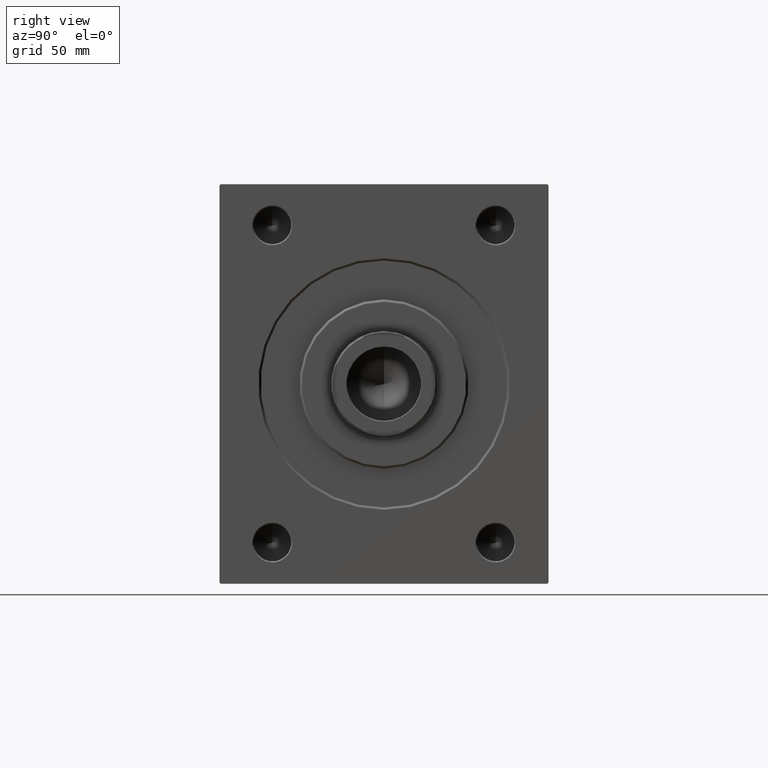
[diagram: clean part render]
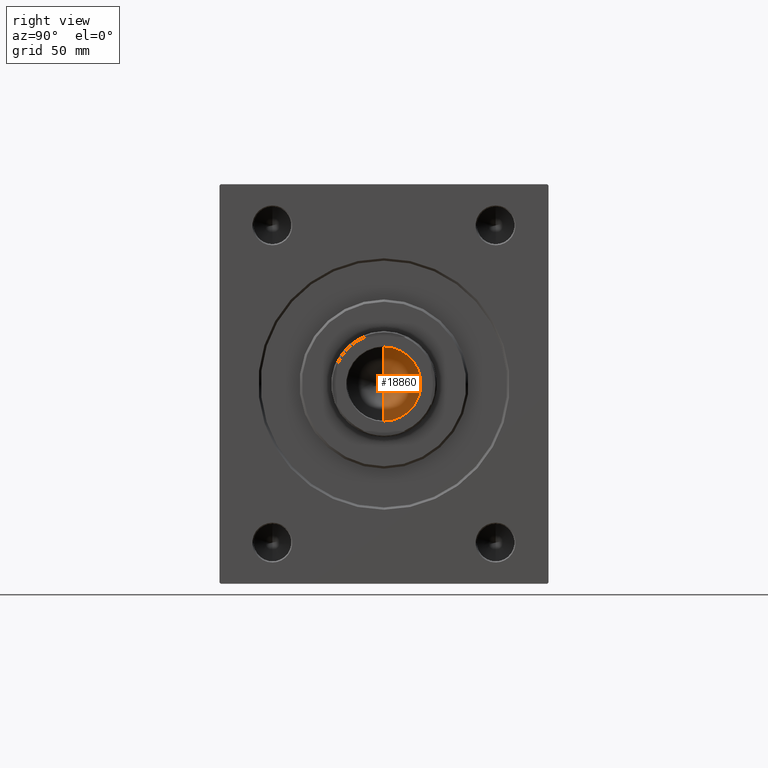
[diagram: same view with one face highlighted and labeled with its STEP entity id]
A machine part, right view. The second image highlights one B-rep face of the part: STEP entity #18860.
In plain terms, the highlighted conical surface has half-angle 59 deg.
Its self-contained STEP definition (entity closure, byte-faithful):
#1443 = DIRECTION ( 'NONE',  ( -0.000000000000000000, -0.000000000000000000, 1.000000000000000000 ) ) ;
#6463 = LINE ( 'NONE', #23000, #37816 ) ;
#8055 = FACE_OUTER_BOUND ( 'NONE', #26933, .T. ) ;
#11003 = DIRECTION ( 'NONE',  ( -0.000000000000000000, -0.000000000000000000, 1.000000000000000000 ) ) ;
#12069 = DIRECTION ( 'NONE',  ( 1.000000000000000000, 0.000000000000000000, 0.000000000000000000 ) ) ;
#13920 = LINE ( 'NONE', #27477, #32546 ) ;
#14309 = CIRCLE ( 'NONE', #39590, 15.74999999999999289 ) ;
#14416 = VERTEX_POINT ( 'NONE', #15416 ) ;
#15416 = CARTESIAN_POINT ( 'NONE',  ( -15.74999999999999289, 1.928818708657080556E-15, 156.0000000000000000 ) ) ;
#18844 = CONICAL_SURFACE ( 'NONE', #44076, 15.74999999999999289, 1.029744258676653867 ) ;
#18860 = ADVANCED_FACE ( 'NONE', ( #8055 ), #18844, .F. ) ;
#19197 = CARTESIAN_POINT ( 'NONE',  ( -1.041392428426254229E-14, 0.000000000000000000, 146.5364452503159214 ) ) ;
#19621 = DIRECTION ( 'NONE',  ( -0.8571673007021120005, 1.049727191138618326E-16, 0.5150380749100547106 ) ) ;
#22709 = ORIENTED_EDGE ( 'NONE', *, *, #39059, .T. ) ;
#23000 = CARTESIAN_POINT ( 'NONE',  ( -15.74999999999999289, 1.928818708657080556E-15, 156.0000000000000000 ) ) ;
#24453 = ORIENTED_EDGE ( 'NONE', *, *, #43228, .T. ) ;
#24805 = CARTESIAN_POINT ( 'NONE',  ( 0.000000000000000000, 0.000000000000000000, 156.0000000000000000 ) ) ;
#26313 = VERTEX_POINT ( 'NONE', #30945 ) ;
#26613 = VERTEX_POINT ( 'NONE', #19197 ) ;
#26933 = EDGE_LOOP ( 'NONE', ( #31773, #24453, #22709 ) ) ;
#27477 = CARTESIAN_POINT ( 'NONE',  ( 15.74999999999999289, 0.000000000000000000, 156.0000000000000000 ) ) ;
#30308 = EDGE_CURVE ( 'NONE', #26613, #14416, #6463, .T. ) ;
#30638 = DIRECTION ( 'NONE',  ( 0.8571673007021120005, 0.000000000000000000, 0.5150380749100547106 ) ) ;
#30945 = CARTESIAN_POINT ( 'NONE',  ( 15.74999999999999289, 0.000000000000000000, 156.0000000000000000 ) ) ;
#31773 = ORIENTED_EDGE ( 'NONE', *, *, #30308, .F. ) ;
#32546 = VECTOR ( 'NONE', #30638, 1000.000000000000000 ) ;
#37816 = VECTOR ( 'NONE', #19621, 1000.000000000000000 ) ;
#39059 = EDGE_CURVE ( 'NONE', #26313, #14416, #14309, .T. ) ;
#39590 = AXIS2_PLACEMENT_3D ( 'NONE', #43038, #1443, #12069 ) ;
#42208 = DIRECTION ( 'NONE',  ( 1.000000000000000000, 0.000000000000000000, 0.000000000000000000 ) ) ;
#43038 = CARTESIAN_POINT ( 'NONE',  ( 0.000000000000000000, 0.000000000000000000, 156.0000000000000000 ) ) ;
#43228 = EDGE_CURVE ( 'NONE', #26613, #26313, #13920, .T. ) ;
#44076 = AXIS2_PLACEMENT_3D ( 'NONE', #24805, #11003, #42208 ) ;